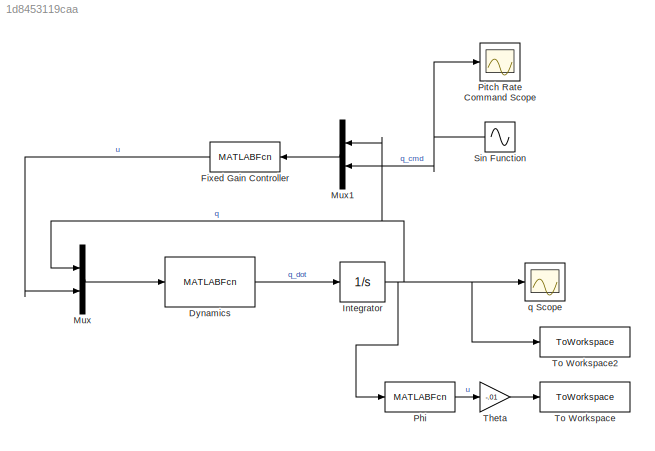
MODEL slx_1d8453119caa
KIND model
CONFIG AbsTol = auto
CONFIG EnableMultiTasking = off
CONFIG FixedStep = auto
CONFIG MaxStep = auto
CONFIG MinStep = auto
CONFIG RelTol = 1e-3
CONFIG SampleTimeConstraint = Unconstrained
CONFIG SolverName = VariableStepAuto
CONFIG StartTime = 0.0
CONFIG StopTime = TF
BLOCK [MATLABFcn] Dynamics
  MATLABFcn = Dynamics(u(1),u(2))
  Ports = [1, 1]
BLOCK [MATLABFcn] Fixed Gain Controller
  MATLABFcn = u_ideal(u(1),u(2))
  NameLocation = top
  Ports = [1, 1]
BLOCK [Integrator] Integrator
  InitialCondition = q0
  Ports = [1, 1]
BLOCK [Mux] Mux
  DisplayOption = bar
  Inputs = 2
  Ports = [2, 1]
BLOCK [Mux] Mux1
  DisplayOption = bar
  Inputs = 2
  NameLocation = top
  Ports = [2, 1]
BLOCK [MATLABFcn] Phi
  MATLABFcn = Phi(u)
  Ports = [1, 1]
BLOCK [Scope] Pitch Rate Command Scope
  Floating = off
  NumInputPorts = 1
  Ports = [1]
  ScopeSpecificationString = Simulink.scopes.TimeScopeBlockCfg('CurrentConfiguration', extmgr.ConfigurationSet(extmgr.Configuration('Core','General UI',true),extmgr.Configuration('Core','Source UI',true),extmgr.Configuration('Sources','WiredSimulink',true,'DataLoggingVariableName','ScopeData1'),extmgr.Configuration('Visuals','Time Domain',true,'SerializedDisplays',{struct('MinYLimReal','-0.39778','MaxYLimReal','0.39752','YLab...<+1399ch>
BLOCK [Sin] Sin Function 
  Amplitude = Amplitude
  Frequency = Frequency
  NameLocation = top
  Ports = [0, 1]
  SampleTime = 0
BLOCK [Gain] Theta
  Gain = -.01
BLOCK [ToWorkspace] To Workspace
  FixptAsFi = on
  MaxDataPoints = inf
  Ports = [1]
  SampleTime = -1
  SaveFormat = Timeseries
  VariableName = f
BLOCK [ToWorkspace] To Workspace2
  FixptAsFi = on
  MaxDataPoints = inf
  Ports = [1]
  SampleTime = -1
  SaveFormat = Timeseries
  VariableName = q_ideal
BLOCK [Scope] q Scope
  Floating = off
  NumInputPorts = 1
  Ports = [1]
  ScopeSpecificationString = Simulink.scopes.TimeScopeBlockCfg('CurrentConfiguration', extmgr.ConfigurationSet(extmgr.Configuration('Core','General UI',true),extmgr.Configuration('Core','Source UI',true),extmgr.Configuration('Sources','WiredSimulink',true),extmgr.Configuration('Visuals','Time Domain',true,'SerializedDisplays',{struct('MinYLimReal','-0.39666','MaxYLimReal','0.39689','YLabelReal','','MinYLimMag','0.00000','MaxY...<+1321ch>
LINE Dynamics:1 -> Integrator:1
LINE Fixed Gain Controller:1 -> Mux:2
NET Integrator:1 -> Mux1:1, Mux:1, Phi:1, To Workspace2:1, q Scope:1
LINE Mux1:1 -> Fixed Gain Controller:1
LINE Mux:1 -> Dynamics:1
LINE Phi:1 -> Theta:1
NET Sin Function :1 -> Mux1:2, Pitch Rate Command Scope:1
LINE Theta:1 -> To Workspace:1
note: NET lines group one-source signal fan-out (src -> all destinations, sorted); 1:1 wires keep LINE
